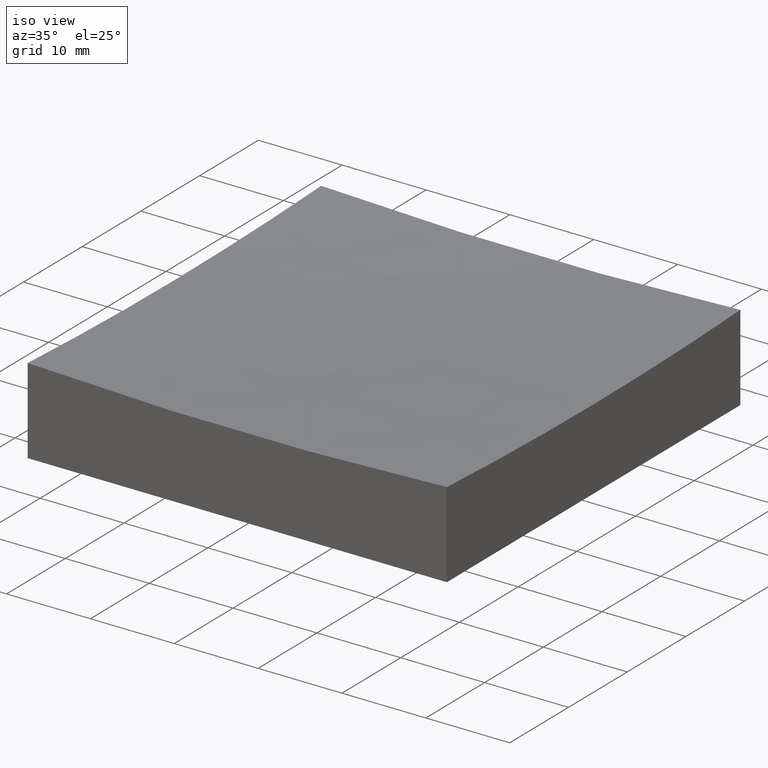
[diagram: clean part render]
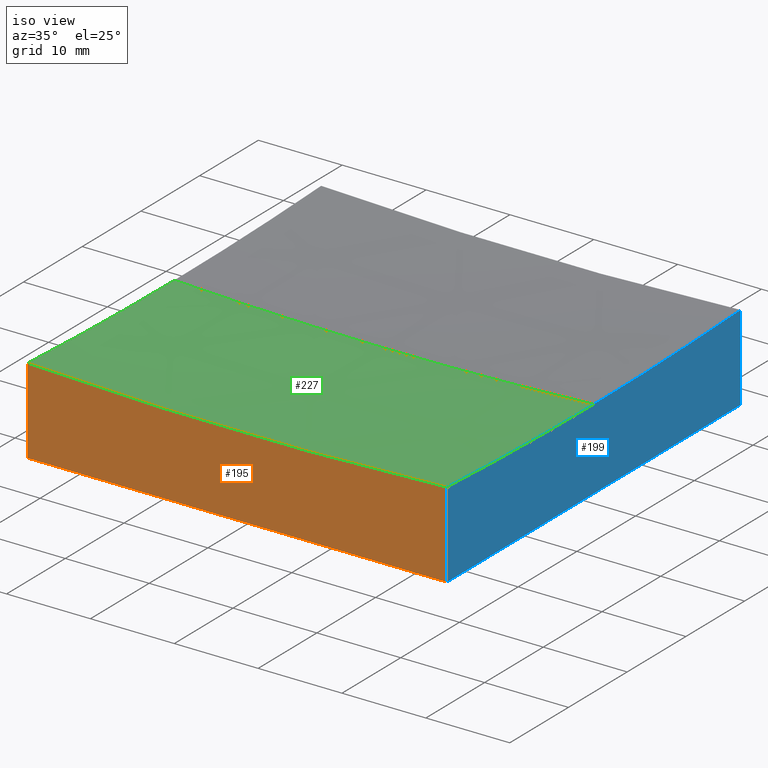
[diagram: same view with three faces highlighted in distinct colors, each labeled with its STEP entity id]
A machine part, iso view with three faces highlighted in distinct colors.
Their STEP definitions:

[orange] entity #195 — the highlighted planar face has unit normal (0, 1, 0).
#9 = VERTEX_POINT ( 'NONE', #155 ) ;
#21 = LINE ( 'NONE', #41, #81 ) ;
#26 = EDGE_CURVE ( 'NONE', #90, #221, #103, .T. ) ;
#32 = VERTEX_POINT ( 'NONE', #150 ) ;
#39 = VECTOR ( 'NONE', #252, 1000.000000000000000 ) ;
#41 = CARTESIAN_POINT ( 'NONE',  ( -25.00000000000000000, -25.00000000000000711, 50.00000000000000000 ) ) ;
#57 = PLANE ( 'NONE',  #183 ) ;
#62 = CARTESIAN_POINT ( 'NONE',  ( -25.00000000000000000, -25.00000000000000711, 50.00000000000000000 ) ) ;
#81 = VECTOR ( 'NONE', #213, 1000.000000000000000 ) ;
#84 = ORIENTED_EDGE ( 'NONE', *, *, #26, .T. ) ;
#88 = CARTESIAN_POINT ( 'NONE',  ( -25.00000000000000000, -25.00000000000000711, 10.25156641849994621 ) ) ;
#90 = VERTEX_POINT ( 'NONE', #173 ) ;
#98 = CARTESIAN_POINT ( 'NONE',  ( -25.00000000000000000, -25.00000000000000711, 0.0000000000000000000 ) ) ;
#103 = CIRCLE ( 'NONE', #110, 499.3746088859544443 ) ;
#109 = ORIENTED_EDGE ( 'NONE', *, *, #161, .T. ) ;
#110 = AXIS2_PLACEMENT_3D ( 'NONE', #116, #112, #130 ) ;
#112 = DIRECTION ( 'NONE',  ( 0.0000000000000000000, 1.000000000000000000, 0.0000000000000000000 ) ) ;
#113 = ORIENTED_EDGE ( 'NONE', *, *, #197, .F. ) ;
#115 = CARTESIAN_POINT ( 'NONE',  ( 25.00000000000000000, -25.00000000000000711, 50.00000000000000000 ) ) ;
#116 = CARTESIAN_POINT ( 'NONE',  ( 6.233452207660027876E-14, -25.00000000000000711, 509.0000000000000000 ) ) ;
#123 = EDGE_CURVE ( 'NONE', #221, #32, #21, .T. ) ;
#130 = DIRECTION ( 'NONE',  ( 0.0000000000000000000, 0.0000000000000000000, 1.000000000000000000 ) ) ;
#138 = LINE ( 'NONE', #98, #39 ) ;
#150 = CARTESIAN_POINT ( 'NONE',  ( -25.00000000000000000, -25.00000000000000711, 0.0000000000000000000 ) ) ;
#155 = CARTESIAN_POINT ( 'NONE',  ( 25.00000000000000000, -25.00000000000000711, 0.0000000000000000000 ) ) ;
#161 = EDGE_CURVE ( 'NONE', #32, #9, #138, .T. ) ;
#173 = CARTESIAN_POINT ( 'NONE',  ( 25.00000000000000000, -25.00000000000000711, 10.25156641849989114 ) ) ;
#182 = ORIENTED_EDGE ( 'NONE', *, *, #123, .T. ) ;
#183 = AXIS2_PLACEMENT_3D ( 'NONE', #62, #216, #207 ) ;
#187 = DIRECTION ( 'NONE',  ( -0.0000000000000000000, -0.0000000000000000000, -1.000000000000000000 ) ) ;
#195 = ADVANCED_FACE ( 'NONE', ( #230 ), #57, .F. ) ;
#197 = EDGE_CURVE ( 'NONE', #90, #9, #210, .T. ) ;
#198 = VECTOR ( 'NONE', #187, 1000.000000000000000 ) ;
#202 = EDGE_LOOP ( 'NONE', ( #113, #84, #182, #109 ) ) ;
#207 = DIRECTION ( 'NONE',  ( 0.0000000000000000000, -0.0000000000000000000, 1.000000000000000000 ) ) ;
#210 = LINE ( 'NONE', #115, #198 ) ;
#213 = DIRECTION ( 'NONE',  ( -0.0000000000000000000, -0.0000000000000000000, -1.000000000000000000 ) ) ;
#216 = DIRECTION ( 'NONE',  ( 0.0000000000000000000, 1.000000000000000000, 0.0000000000000000000 ) ) ;
#221 = VERTEX_POINT ( 'NONE', #88 ) ;
#230 = FACE_OUTER_BOUND ( 'NONE', #202, .T. ) ;
#252 = DIRECTION ( 'NONE',  ( 1.000000000000000000, 0.0000000000000000000, 0.0000000000000000000 ) ) ;

[blue] entity #199 — the highlighted planar face has unit normal (1, 0, -0).
#6 = DIRECTION ( 'NONE',  ( 1.000000000000000000, 6.938893903907228378E-17, -0.0000000000000000000 ) ) ;
#9 = VERTEX_POINT ( 'NONE', #155 ) ;
#10 = ORIENTED_EDGE ( 'NONE', *, *, #99, .F. ) ;
#18 = DIRECTION ( 'NONE',  ( 1.000000000000000000, 6.938893903907228378E-17, -0.0000000000000000000 ) ) ;
#36 = DIRECTION ( 'NONE',  ( 1.000000000000000000, 6.938893903907228378E-17, -0.0000000000000000000 ) ) ;
#60 = VECTOR ( 'NONE', #136, 1000.000000000000000 ) ;
#61 = DIRECTION ( 'NONE',  ( -6.947583818275299433E-17, 1.000000000000000000, 0.0000000000000000000 ) ) ;
#63 = EDGE_CURVE ( 'NONE', #174, #104, #118, .T. ) ;
#66 = ORIENTED_EDGE ( 'NONE', *, *, #120, .F. ) ;
#68 = CARTESIAN_POINT ( 'NONE',  ( 24.99999999999999645, 24.99999999999999645, 50.00000000000000000 ) ) ;
#70 = CARTESIAN_POINT ( 'NONE',  ( 24.99999999999999645, 24.99999999999999645, 50.00000000000000000 ) ) ;
#76 = DIRECTION ( 'NONE',  ( -6.947583818275299433E-17, 1.000000000000000000, 0.0000000000000000000 ) ) ;
#78 = VECTOR ( 'NONE', #96, 1000.000000000000000 ) ;
#85 = FACE_OUTER_BOUND ( 'NONE', #247, .T. ) ;
#90 = VERTEX_POINT ( 'NONE', #173 ) ;
#94 = ORIENTED_EDGE ( 'NONE', *, *, #95, .F. ) ;
#95 = EDGE_CURVE ( 'NONE', #90, #189, #122, .T. ) ;
#96 = DIRECTION ( 'NONE',  ( 6.938893903907228378E-17, -1.000000000000000000, 0.0000000000000000000 ) ) ;
#99 = EDGE_CURVE ( 'NONE', #104, #9, #248, .T. ) ;
#104 = VERTEX_POINT ( 'NONE', #191 ) ;
#115 = CARTESIAN_POINT ( 'NONE',  ( 25.00000000000000000, -25.00000000000000711, 50.00000000000000000 ) ) ;
#118 = LINE ( 'NONE', #68, #60 ) ;
#120 = EDGE_CURVE ( 'NONE', #189, #174, #214, .T. ) ;
#122 = CIRCLE ( 'NONE', #180, 499.3746088859545011 ) ;
#126 = DIRECTION ( 'NONE',  ( -6.938893903907228378E-17, 1.000000000000000000, 0.0000000000000000000 ) ) ;
#132 = CARTESIAN_POINT ( 'NONE',  ( 24.99999999999999645, 0.0000000000000000000, 9.625391114045534380 ) ) ;
#134 = CARTESIAN_POINT ( 'NONE',  ( 24.99999999999999645, 1.734723475976802756E-15, 509.0000000000000000 ) ) ;
#136 = DIRECTION ( 'NONE',  ( -0.0000000000000000000, -0.0000000000000000000, -1.000000000000000000 ) ) ;
#155 = CARTESIAN_POINT ( 'NONE',  ( 25.00000000000000000, -25.00000000000000711, 0.0000000000000000000 ) ) ;
#170 = ORIENTED_EDGE ( 'NONE', *, *, #197, .T. ) ;
#172 = ORIENTED_EDGE ( 'NONE', *, *, #63, .F. ) ;
#173 = CARTESIAN_POINT ( 'NONE',  ( 25.00000000000000000, -25.00000000000000711, 10.25156641849989114 ) ) ;
#174 = VERTEX_POINT ( 'NONE', #178 ) ;
#178 = CARTESIAN_POINT ( 'NONE',  ( 24.99999999999999645, 24.99999999999999645, 10.25156641849989114 ) ) ;
#180 = AXIS2_PLACEMENT_3D ( 'NONE', #134, #18, #61 ) ;
#187 = DIRECTION ( 'NONE',  ( -0.0000000000000000000, -0.0000000000000000000, -1.000000000000000000 ) ) ;
#189 = VERTEX_POINT ( 'NONE', #132 ) ;
#191 = CARTESIAN_POINT ( 'NONE',  ( 24.99999999999999645, 24.99999999999999645, 0.0000000000000000000 ) ) ;
#197 = EDGE_CURVE ( 'NONE', #90, #9, #210, .T. ) ;
#198 = VECTOR ( 'NONE', #187, 1000.000000000000000 ) ;
#199 = ADVANCED_FACE ( 'NONE', ( #85 ), #246, .T. ) ;
#203 = AXIS2_PLACEMENT_3D ( 'NONE', #251, #36, #76 ) ;
#210 = LINE ( 'NONE', #115, #198 ) ;
#214 = CIRCLE ( 'NONE', #203, 499.3746088859545011 ) ;
#215 = CARTESIAN_POINT ( 'NONE',  ( 24.99999999999999645, 24.99999999999999645, 0.0000000000000000000 ) ) ;
#229 = AXIS2_PLACEMENT_3D ( 'NONE', #70, #6, #126 ) ;
#246 = PLANE ( 'NONE',  #229 ) ;
#247 = EDGE_LOOP ( 'NONE', ( #94, #170, #10, #172, #66 ) ) ;
#248 = LINE ( 'NONE', #215, #78 ) ;
#251 = CARTESIAN_POINT ( 'NONE',  ( 24.99999999999999645, 1.734723475976802756E-15, 509.0000000000000000 ) ) ;

[green] entity #227 — the highlighted spherical surface has radius 500 mm.
#1 = DIRECTION ( 'NONE',  ( 0.0000000000000000000, 0.0000000000000000000, -1.000000000000000000 ) ) ;
#5 = DIRECTION ( 'NONE',  ( 1.000000000000000000, 0.0000000000000000000, 0.0000000000000000000 ) ) ;
#8 = ORIENTED_EDGE ( 'NONE', *, *, #144, .F. ) ;
#11 = FACE_OUTER_BOUND ( 'NONE', #245, .T. ) ;
#18 = DIRECTION ( 'NONE',  ( 1.000000000000000000, 6.938893903907228378E-17, -0.0000000000000000000 ) ) ;
#26 = EDGE_CURVE ( 'NONE', #90, #221, #103, .T. ) ;
#29 = CARTESIAN_POINT ( 'NONE',  ( 6.233452207660027876E-14, 0.0000000000000000000, 509.0000000000000000 ) ) ;
#40 = DIRECTION ( 'NONE',  ( 0.0000000000000000000, -1.000000000000000000, -0.0000000000000000000 ) ) ;
#42 = CARTESIAN_POINT ( 'NONE',  ( 9.202173048582265139E-14, 0.0000000000000000000, 9.000000000000007105 ) ) ;
#47 = DIRECTION ( 'NONE',  ( -0.0000000000000000000, 1.000000000000000000, 0.0000000000000000000 ) ) ;
#54 = ORIENTED_EDGE ( 'NONE', *, *, #164, .F. ) ;
#56 = CARTESIAN_POINT ( 'NONE',  ( -25.00000000000000355, -1.734723475976811630E-15, 509.0000000000000000 ) ) ;
#61 = DIRECTION ( 'NONE',  ( -6.947583818275299433E-17, 1.000000000000000000, 0.0000000000000000000 ) ) ;
#69 = ORIENTED_EDGE ( 'NONE', *, *, #166, .T. ) ;
#73 = DIRECTION ( 'NONE',  ( 1.224646799147353207E-16, 1.000000000000000000, -2.275299625143731854E-34 ) ) ;
#75 = CARTESIAN_POINT ( 'NONE',  ( 6.233452207660027876E-14, 0.0000000000000000000, 509.0000000000000000 ) ) ;
#87 = VERTEX_POINT ( 'NONE', #91 ) ;
#88 = CARTESIAN_POINT ( 'NONE',  ( -25.00000000000000000, -25.00000000000000711, 10.25156641849994621 ) ) ;
#90 = VERTEX_POINT ( 'NONE', #173 ) ;
#91 = CARTESIAN_POINT ( 'NONE',  ( -25.00000000000000355, 3.061616997868391720E-15, 9.625391114045534380 ) ) ;
#95 = EDGE_CURVE ( 'NONE', #90, #189, #122, .T. ) ;
#103 = CIRCLE ( 'NONE', #110, 499.3746088859544443 ) ;
#105 = CIRCLE ( 'NONE', #158, 500.0000000000000000 ) ;
#110 = AXIS2_PLACEMENT_3D ( 'NONE', #116, #112, #130 ) ;
#112 = DIRECTION ( 'NONE',  ( 0.0000000000000000000, 1.000000000000000000, 0.0000000000000000000 ) ) ;
#116 = CARTESIAN_POINT ( 'NONE',  ( 6.233452207660027876E-14, -25.00000000000000711, 509.0000000000000000 ) ) ;
#122 = CIRCLE ( 'NONE', #180, 499.3746088859545011 ) ;
#124 = AXIS2_PLACEMENT_3D ( 'NONE', #56, #176, #139 ) ;
#130 = DIRECTION ( 'NONE',  ( 0.0000000000000000000, 0.0000000000000000000, 1.000000000000000000 ) ) ;
#132 = CARTESIAN_POINT ( 'NONE',  ( 24.99999999999999645, 0.0000000000000000000, 9.625391114045534380 ) ) ;
#134 = CARTESIAN_POINT ( 'NONE',  ( 24.99999999999999645, 1.734723475976802756E-15, 509.0000000000000000 ) ) ;
#139 = DIRECTION ( 'NONE',  ( -6.947583818275299433E-17, 1.000000000000000000, 0.0000000000000000000 ) ) ;
#141 = CIRCLE ( 'NONE', #124, 499.3746088859545011 ) ;
#143 = AXIS2_PLACEMENT_3D ( 'NONE', #29, #47, #5 ) ;
#144 = EDGE_CURVE ( 'NONE', #186, #189, #218, .T. ) ;
#157 = CARTESIAN_POINT ( 'NONE',  ( 6.233452207660027876E-14, 0.0000000000000000000, 509.0000000000000000 ) ) ;
#158 = AXIS2_PLACEMENT_3D ( 'NONE', #157, #73, #225 ) ;
#164 = EDGE_CURVE ( 'NONE', #221, #87, #141, .T. ) ;
#165 = SPHERICAL_SURFACE ( 'NONE', #143, 500.0000000000000000 ) ;
#166 = EDGE_CURVE ( 'NONE', #186, #87, #105, .T. ) ;
#173 = CARTESIAN_POINT ( 'NONE',  ( 25.00000000000000000, -25.00000000000000711, 10.25156641849989114 ) ) ;
#176 = DIRECTION ( 'NONE',  ( 1.000000000000000000, 6.938893903907228378E-17, -0.0000000000000000000 ) ) ;
#180 = AXIS2_PLACEMENT_3D ( 'NONE', #134, #18, #61 ) ;
#186 = VERTEX_POINT ( 'NONE', #42 ) ;
#189 = VERTEX_POINT ( 'NONE', #132 ) ;
#194 = ORIENTED_EDGE ( 'NONE', *, *, #95, .T. ) ;
#218 = CIRCLE ( 'NONE', #234, 500.0000000000000000 ) ;
#221 = VERTEX_POINT ( 'NONE', #88 ) ;
#225 = DIRECTION ( 'NONE',  ( -1.000000000000000000, 1.224646799147353207E-16, 0.0000000000000000000 ) ) ;
#227 = ADVANCED_FACE ( 'NONE', ( #11 ), #165, .F. ) ;
#234 = AXIS2_PLACEMENT_3D ( 'NONE', #75, #40, #1 ) ;
#244 = ORIENTED_EDGE ( 'NONE', *, *, #26, .F. ) ;
#245 = EDGE_LOOP ( 'NONE', ( #8, #69, #54, #244, #194 ) ) ;